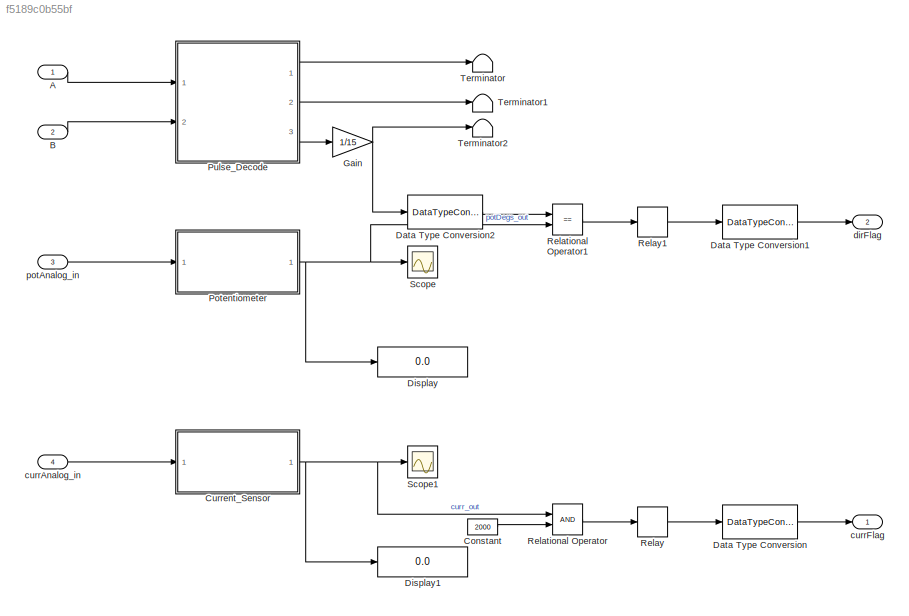
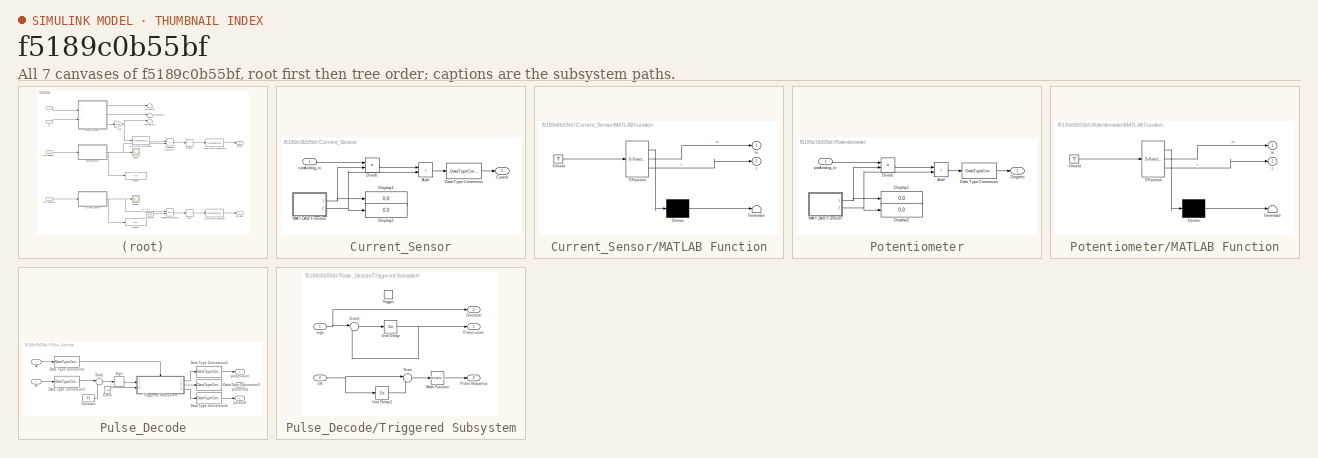
[diagram: thumbnail index - all 7 canvases of the model, root first then tree order]
MODEL slx_f5189c0b55bf
KIND model
CONFIG AbsTol = auto
CONFIG EnableMultiTasking = off
CONFIG FixedStep = auto
CONFIG MaxStep = auto
CONFIG MinStep = auto
CONFIG RelTol = 1e-3
CONFIG SampleTimeConstraint = Unconstrained
CONFIG SolverName = FixedStepAuto
CONFIG StartTime = 0.0
CONFIG StopTime = 10.0
BLOCK [Inport] A
  OutDataTypeStr = uint8
BLOCK [Inport] B
  OutDataTypeStr = uint8
  Port = 2
BLOCK [Constant] Constant
  OutDataTypeStr = uint16
  Value = 2000
BLOCK [SubSystem] Current_Sensor
  Ports = [1, 1]
  RequestExecContextInheritance = off
  TreatAsAtomicUnit = on
BLOCK [Sum] Current_Sensor/Add
  IconShape = rectangular
  Ports = [2, 1]
BLOCK [Outport] Current_Sensor/Current
BLOCK [DataTypeConversion] Current_Sensor/Data Type Conversion
  OutDataTypeStr = uint16
  RndMeth = Floor
  SaturateOnIntegerOverflow = off
BLOCK [Display] Current_Sensor/Display1
  Decimation = 1
  Ports = [1]
BLOCK [Display] Current_Sensor/Display2
  Decimation = 1
  Ports = [1]
BLOCK [Product] Current_Sensor/Divide
  Inputs = **
  Ports = [2, 1]
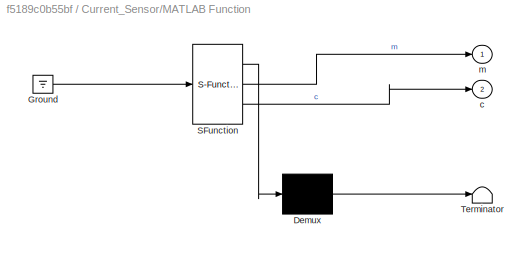
BLOCK [SubSystem] Current_Sensor/MATLAB Function
  ErrorFcn = Stateflow.Translate.translate
  PermitHierarchicalResolution = ExplicitOnly
  Ports = [0, 2]
  RequestExecContextInheritance = off
  SFBlockType = MATLAB Function
  TreatAsAtomicUnit = on
BLOCK [Demux] Current_Sensor/MATLAB Function/ Demux 
  Outputs = 1
  Ports = [1, 1]
BLOCK [Ground] Current_Sensor/MATLAB Function/ Ground 
BLOCK [S-Function] Current_Sensor/MATLAB Function/ SFunction 
  EnableBusSupport = on
  FunctionName = sf_sfun
  PortCounts = [1 3]
  Ports = [1, 3]
  SFcnIsStateOwnerBlock = off
  SFunctionDeploymentMode = off
  Tag = Stateflow S-Function 1
BLOCK [Terminator] Current_Sensor/MATLAB Function/ Terminator 
BLOCK [Outport] Current_Sensor/MATLAB Function/c
  Port = 2
BLOCK [Outport] Current_Sensor/MATLAB Function/m
BLOCK [Inport] Current_Sensor/currAnalog_in
BLOCK [DataTypeConversion] Data Type Conversion
  RndMeth = Floor
  SaturateOnIntegerOverflow = off
BLOCK [DataTypeConversion] Data Type Conversion1
  RndMeth = Floor
  SaturateOnIntegerOverflow = off
BLOCK [DataTypeConversion] Data Type Conversion2
  RndMeth = Floor
  SaturateOnIntegerOverflow = off
BLOCK [Display] Display
  Decimation = 1
  Ports = [1]
BLOCK [Display] Display1
  Decimation = 1
  Ports = [1]
BLOCK [Gain] Gain
  Gain = 1/15
BLOCK [SubSystem] Potentiometer
  Ports = [1, 1]
  RequestExecContextInheritance = off
  TreatAsAtomicUnit = on
BLOCK [Sum] Potentiometer/Add
  IconShape = rectangular
  Ports = [2, 1]
BLOCK [DataTypeConversion] Potentiometer/Data Type Conversion
  OutDataTypeStr = uint16
  RndMeth = Floor
  SaturateOnIntegerOverflow = off
BLOCK [Outport] Potentiometer/Degrees
BLOCK [Display] Potentiometer/Display1
  Decimation = 1
  Ports = [1]
BLOCK [Display] Potentiometer/Display2
  Decimation = 1
  Ports = [1]
BLOCK [Product] Potentiometer/Divide
  Inputs = **
  Ports = [2, 1]
BLOCK [SubSystem] Potentiometer/MATLAB Function
  ErrorFcn = Stateflow.Translate.translate
  PermitHierarchicalResolution = ExplicitOnly
  Ports = [0, 2]
  RequestExecContextInheritance = off
  SFBlockType = MATLAB Function
  TreatAsAtomicUnit = on
BLOCK [Demux] Potentiometer/MATLAB Function/ Demux 
  Outputs = 1
  Ports = [1, 1]
BLOCK [Ground] Potentiometer/MATLAB Function/ Ground 
BLOCK [S-Function] Potentiometer/MATLAB Function/ SFunction 
  EnableBusSupport = on
  FunctionName = sf_sfun
  PortCounts = [1 3]
  Ports = [1, 3]
  SFcnIsStateOwnerBlock = off
  SFunctionDeploymentMode = off
  Tag = Stateflow S-Function 2
BLOCK [Terminator] Potentiometer/MATLAB Function/ Terminator 
BLOCK [Outport] Potentiometer/MATLAB Function/c
  Port = 2
BLOCK [Outport] Potentiometer/MATLAB Function/m
BLOCK [Inport] Potentiometer/potAnalog_in
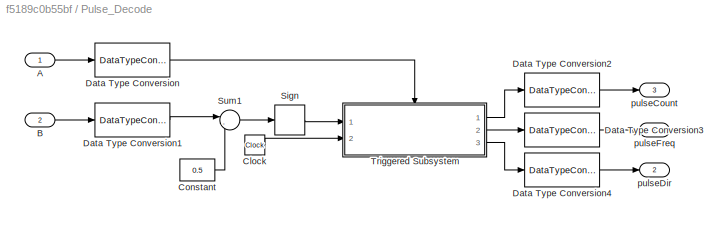
BLOCK [SubSystem] Pulse_Decode
  Ports = [2, 3]
  RequestExecContextInheritance = off
  TreatAsAtomicUnit = on
BLOCK [Inport] Pulse_Decode/A
BLOCK [Inport] Pulse_Decode/B
  Port = 2
BLOCK [Clock] Pulse_Decode/Clock
BLOCK [Constant] Pulse_Decode/Constant
  Value = 0.5
BLOCK [DataTypeConversion] Pulse_Decode/Data Type Conversion
  RndMeth = Floor
  SaturateOnIntegerOverflow = off
BLOCK [DataTypeConversion] Pulse_Decode/Data Type Conversion1
  RndMeth = Floor
  SaturateOnIntegerOverflow = off
BLOCK [DataTypeConversion] Pulse_Decode/Data Type Conversion2
  RndMeth = Floor
  SaturateOnIntegerOverflow = off
BLOCK [DataTypeConversion] Pulse_Decode/Data Type Conversion3
  RndMeth = Floor
  SaturateOnIntegerOverflow = off
BLOCK [DataTypeConversion] Pulse_Decode/Data Type Conversion4
  RndMeth = Floor
  SaturateOnIntegerOverflow = off
BLOCK [Signum] Pulse_Decode/Sign
BLOCK [Sum] Pulse_Decode/Sum1
  Inputs = |-+
  Ports = [2, 1]
BLOCK [SubSystem] Pulse_Decode/Triggered Subsystem
  Ports = [2, 3, 0, 1]
  RequestExecContextInheritance = off
  TreatAsAtomicUnit = on
BLOCK [Outport] Pulse_Decode/Triggered Subsystem/Direction
  InitialOutput = 0
  Port = 3
  VectorParamsAs1DForOutWhenUnconnected = off
BLOCK [Math] Pulse_Decode/Triggered Subsystem/Math Function
  Operator = reciprocal
  Ports = [1, 1]
  SignedPower = on
BLOCK [Outport] Pulse_Decode/Triggered Subsystem/Pulse count
  InitialOutput = 0
  VectorParamsAs1DForOutWhenUnconnected = off
BLOCK [Outport] Pulse_Decode/Triggered Subsystem/Pulse frequency
  Port = 2
  VectorParamsAs1DForOutWhenUnconnected = off
BLOCK [Sum] Pulse_Decode/Triggered Subsystem/Sum
  Inputs = |+-
  Ports = [2, 1]
BLOCK [Sum] Pulse_Decode/Triggered Subsystem/Sum1
  Inputs = |++
  Ports = [2, 1]
BLOCK [TriggerPort] Pulse_Decode/Triggered Subsystem/Trigger
  Ports = []
  StatesWhenEnabling = held
  VariantControl = Variant
BLOCK [UnitDelay] Pulse_Decode/Triggered Subsystem/Unit Delay
  HasFrameUpgradeWarning = on
  SampleTime = -1
BLOCK [UnitDelay] Pulse_Decode/Triggered Subsystem/Unit Delay1
  HasFrameUpgradeWarning = on
  InitialCondition = -1e10
  SampleTime = -1
BLOCK [Inport] Pulse_Decode/Triggered Subsystem/clk
  Port = 2
BLOCK [Inport] Pulse_Decode/Triggered Subsystem/sign
BLOCK [Outport] Pulse_Decode/pulseCount
  Port = 3
  VectorParamsAs1DForOutWhenUnconnected = off
BLOCK [Outport] Pulse_Decode/pulseDir
  Port = 2
  VectorParamsAs1DForOutWhenUnconnected = off
BLOCK [Outport] Pulse_Decode/pulseFreq
  VectorParamsAs1DForOutWhenUnconnected = off
BLOCK [RelationalOperator] Relational Operator
  InputSameDT = off
  OutDataTypeStr = boolean
  Ports = [2, 1]
  RndMeth = Simplest
BLOCK [RelationalOperator] Relational Operator1
  InputSameDT = off
  Operator = ==
  OutDataTypeStr = boolean
  Ports = [2, 1]
  RndMeth = Simplest
BLOCK [Relay] Relay
  OnSwitchValue = 1
BLOCK [Relay] Relay1
  OffOutputValue = 1
  OnOutputValue = 0
  OnSwitchValue = 1
BLOCK [Scope] Scope
  Floating = off
  NumInputPorts = 1
  Ports = [1]
  ScopeSpecificationString = Simulink.scopes.TimeScopeBlockCfg('CurrentConfiguration', extmgr.ConfigurationSet(extmgr.Configuration('Core','General UI',true),extmgr.Configuration('Core','Source UI',true),extmgr.Configuration('Sources','WiredSimulink',true),extmgr.Configuration('Visuals','Time Domain',true,'SerializedDisplays',{struct('MinYLimReal','22.00000','MaxYLimReal','42.00000','YLabelReal','','MinYLimMag','22.00000','Ma...<+1339ch>
BLOCK [Scope] Scope1
  Floating = off
  NumInputPorts = 1
  Ports = [1]
  ScopeSpecificationString = Simulink.scopes.TimeScopeBlockCfg('CurrentConfiguration', extmgr.ConfigurationSet(extmgr.Configuration('Core','General UI',true),extmgr.Configuration('Core','Source UI',true),extmgr.Configuration('Sources','WiredSimulink',true,'DataLoggingVariableName','ScopeData1'),extmgr.Configuration('Visuals','Time Domain',true,'SerializedDisplays',{struct('MinYLimReal','22.00000','MaxYLimReal','42.00000','YLa...<+1378ch>
BLOCK [Terminator] Terminator
BLOCK [Terminator] Terminator1
BLOCK [Terminator] Terminator2
BLOCK [Inport] currAnalog_in
  OutDataTypeStr = uint8
  Port = 4
BLOCK [Outport] currFlag
  OutDataTypeStr = uint8
BLOCK [Outport] dirFlag
  OutDataTypeStr = uint8
  Port = 2
BLOCK [Inport] potAnalog_in
  OutDataTypeStr = uint8
  Port = 3
LINE A:1 -> Pulse_Decode:1
LINE B:1 -> Pulse_Decode:2
LINE Constant:1 -> Relational Operator:2
LINE Current_Sensor/Add:1 -> Current_Sensor/Data Type Conversion:1
LINE Current_Sensor/Data Type Conversion:1 -> Current_Sensor/Current:1
LINE Current_Sensor/Divide:1 -> Current_Sensor/Add:1
NET Current_Sensor/MATLAB Function:1 -> Current_Sensor/Display1:1, Current_Sensor/Divide:2
NET Current_Sensor/MATLAB Function:2 -> Current_Sensor/Add:2, Current_Sensor/Display2:1
LINE Current_Sensor/currAnalog_in:1 -> Current_Sensor/Divide:1
NET Current_Sensor:1 -> Display1:1, Relational Operator:1, Scope1:1
LINE Data Type Conversion1:1 -> dirFlag:1
LINE Data Type Conversion2:1 -> Relational Operator1:1
LINE Data Type Conversion:1 -> currFlag:1
NET Gain:1 -> Data Type Conversion2:1, Terminator2:1
LINE Potentiometer/Add:1 -> Potentiometer/Data Type Conversion:1
LINE Potentiometer/Data Type Conversion:1 -> Potentiometer/Degrees:1
LINE Potentiometer/Divide:1 -> Potentiometer/Add:1
NET Potentiometer/MATLAB Function:1 -> Potentiometer/Display1:1, Potentiometer/Divide:2
NET Potentiometer/MATLAB Function:2 -> Potentiometer/Add:2, Potentiometer/Display2:1
LINE Potentiometer/potAnalog_in:1 -> Potentiometer/Divide:1
NET Potentiometer:1 -> Display:1, Relational Operator1:2, Scope:1
LINE Pulse_Decode/A:1 -> Pulse_Decode/Data Type Conversion:1
LINE Pulse_Decode/B:1 -> Pulse_Decode/Data Type Conversion1:1
LINE Pulse_Decode/Clock:1 -> Pulse_Decode/Triggered Subsystem:2
LINE Pulse_Decode/Constant:1 -> Pulse_Decode/Sum1:2
LINE Pulse_Decode/Data Type Conversion1:1 -> Pulse_Decode/Sum1:1
LINE Pulse_Decode/Data Type Conversion2:1 -> Pulse_Decode/pulseCount:1
LINE Pulse_Decode/Data Type Conversion3:1 -> Pulse_Decode/pulseFreq:1
LINE Pulse_Decode/Data Type Conversion4:1 -> Pulse_Decode/pulseDir:1
LINE Pulse_Decode/Data Type Conversion:1 -> Pulse_Decode/Triggered Subsystem:trigger
LINE Pulse_Decode/Sign:1 -> Pulse_Decode/Triggered Subsystem:1
LINE Pulse_Decode/Sum1:1 -> Pulse_Decode/Sign:1
LINE Pulse_Decode/Triggered Subsystem/Math Function:1 -> Pulse_Decode/Triggered Subsystem/Pulse frequency:1
LINE Pulse_Decode/Triggered Subsystem/Sum1:1 -> Pulse_Decode/Triggered Subsystem/Unit Delay:1
LINE Pulse_Decode/Triggered Subsystem/Sum:1 -> Pulse_Decode/Triggered Subsystem/Math Function:1
LINE Pulse_Decode/Triggered Subsystem/Unit Delay1:1 -> Pulse_Decode/Triggered Subsystem/Sum:2
NET Pulse_Decode/Triggered Subsystem/Unit Delay:1 -> Pulse_Decode/Triggered Subsystem/Pulse count:1, Pulse_Decode/Triggered Subsystem/Sum1:2
NET Pulse_Decode/Triggered Subsystem/clk:1 -> Pulse_Decode/Triggered Subsystem/Sum:1, Pulse_Decode/Triggered Subsystem/Unit Delay1:1
NET Pulse_Decode/Triggered Subsystem/sign:1 -> Pulse_Decode/Triggered Subsystem/Direction:1, Pulse_Decode/Triggered Subsystem/Sum1:1
LINE Pulse_Decode/Triggered Subsystem:1 -> Pulse_Decode/Data Type Conversion2:1
LINE Pulse_Decode/Triggered Subsystem:2 -> Pulse_Decode/Data Type Conversion3:1
LINE Pulse_Decode/Triggered Subsystem:3 -> Pulse_Decode/Data Type Conversion4:1
LINE Pulse_Decode:1 -> Terminator:1
LINE Pulse_Decode:2 -> Terminator1:1
LINE Pulse_Decode:3 -> Gain:1
LINE Relational Operator1:1 -> Relay1:1
LINE Relational Operator:1 -> Relay:1
LINE Relay1:1 -> Data Type Conversion1:1
LINE Relay:1 -> Data Type Conversion:1
LINE currAnalog_in:1 -> Current_Sensor:1
LINE potAnalog_in:1 -> Potentiometer:1
note: NET lines group one-source signal fan-out (src -> all destinations, sorted); 1:1 wires keep LINE
CHART Potentiometer/MATLAB Function states=1 transitions=1
  STATE_LABEL 'eML_blk_kernel()'
  STATE_LABEL 'SCRIPT:\nfunction [m, c] = polyFcn_Pot()\nx = [0     17      34      51     68     85     102     119     136     153     170     187     204     221     238     255];                 % Output in Bits\ny = [0     24      48      72     96     120    144     168     192     216     240     264     288     312     336     360];                 % Angular Position in Degrees\nn = 1;                       ...<+365ch>'
CHART Current_Sensor/MATLAB Function states=1 transitions=1
  STATE_LABEL 'eML_blk_kernel()'
  STATE_LABEL 'SCRIPT:\nfunction [m, c] = polyFcn_Curr()\nx = [0     17      34      51     68     85     102     119     136     153     170     187     204     221     238     255];                 % Output in Bits\ny = [0     10      20      30     40     50     60      70      80      90      100     110     120     130     140     150];                 % Current in mA\nn = 1;                                % Po...<+352ch>'
CHART  states=0 transitions=0
CHART  states=0 transitions=0
